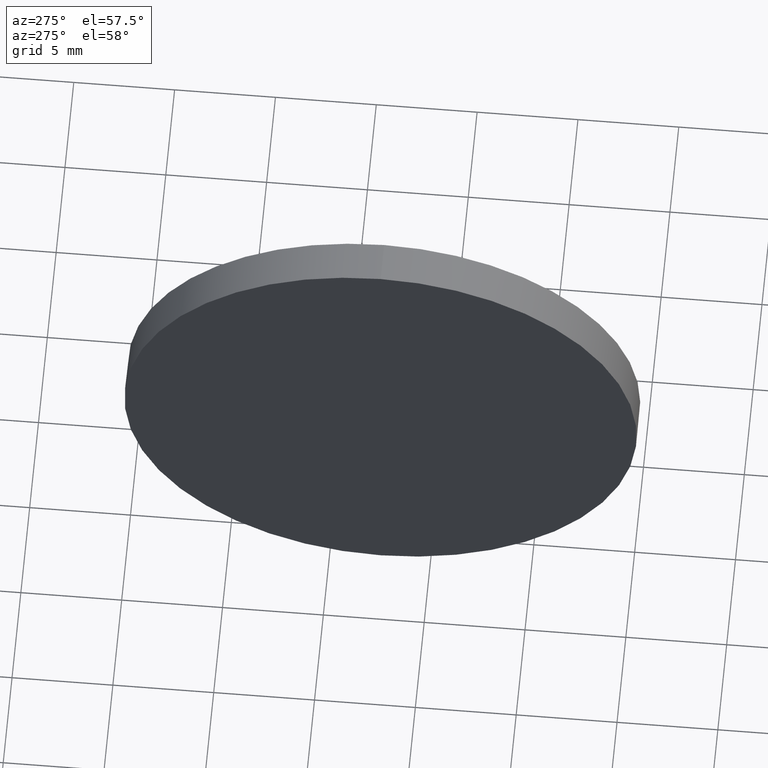
[diagram: clean part render]
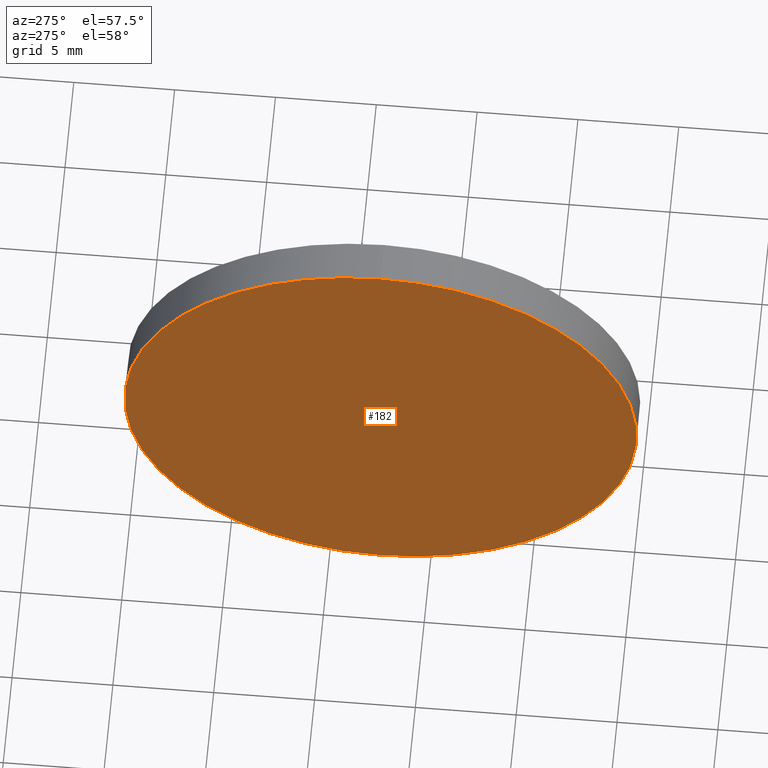
[diagram: same view with one face highlighted and labeled with its STEP entity id]
A machine part, auxiliary view. The second image highlights one B-rep face of the part: STEP entity #182.
In plain terms, the highlighted planar face has unit normal (1, 0, 0).
Its self-contained STEP definition (entity closure, byte-faithful):
#1 = DIRECTION ( 'NONE',  ( -1.000000000000000000, -0.0000000000000000000, -0.0000000000000000000 ) ) ;
#2 = DIRECTION ( 'NONE',  ( 0.0000000000000000000, 0.0000000000000000000, -1.000000000000000000 ) ) ;
#30 = CARTESIAN_POINT ( 'NONE',  ( 528.3828506609415900, 102.4595338729133400, 0.0000000000000000000 ) ) ;
#33 = EDGE_CURVE ( 'NONE', #161, #183, #79, .T. ) ;
#35 = DIRECTION ( 'NONE',  ( 0.0000000000000000000, 0.0000000000000000000, 1.000000000000000000 ) ) ;
#41 = AXIS2_PLACEMENT_3D ( 'NONE', #101, #1, #120 ) ;
#62 = EDGE_LOOP ( 'NONE', ( #117, #70 ) ) ;
#64 = PLANE ( 'NONE',  #98 ) ;
#65 = AXIS2_PLACEMENT_3D ( 'NONE', #30, #68, #35 ) ;
#68 = DIRECTION ( 'NONE',  ( -1.000000000000000000, -0.0000000000000000000, -0.0000000000000000000 ) ) ;
#70 = ORIENTED_EDGE ( 'NONE', *, *, #152, .T. ) ;
#79 = CIRCLE ( 'NONE', #41, 12.70000000000000300 ) ;
#83 = CARTESIAN_POINT ( 'NONE',  ( 528.3828506609415900, 102.4595338729133400, 12.70000000000000300 ) ) ;
#98 = AXIS2_PLACEMENT_3D ( 'NONE', #160, #159, #2 ) ;
#99 = FACE_OUTER_BOUND ( 'NONE', #62, .T. ) ;
#101 = CARTESIAN_POINT ( 'NONE',  ( 528.3828506609415900, 102.4595338729133400, 0.0000000000000000000 ) ) ;
#112 = CIRCLE ( 'NONE', #65, 12.70000000000000300 ) ;
#117 = ORIENTED_EDGE ( 'NONE', *, *, #33, .T. ) ;
#120 = DIRECTION ( 'NONE',  ( 0.0000000000000000000, 0.0000000000000000000, 1.000000000000000000 ) ) ;
#152 = EDGE_CURVE ( 'NONE', #183, #161, #112, .T. ) ;
#159 = DIRECTION ( 'NONE',  ( 1.000000000000000000, 0.0000000000000000000, 0.0000000000000000000 ) ) ;
#160 = CARTESIAN_POINT ( 'NONE',  ( 528.3828506609415900, 102.4595338729133400, 0.0000000000000000000 ) ) ;
#161 = VERTEX_POINT ( 'NONE', #83 ) ;
#163 = CARTESIAN_POINT ( 'NONE',  ( 528.3828506609415900, 102.4595338729133400, -12.70000000000000300 ) ) ;
#182 = ADVANCED_FACE ( 'NONE', ( #99 ), #64, .F. ) ;
#183 = VERTEX_POINT ( 'NONE', #163 ) ;